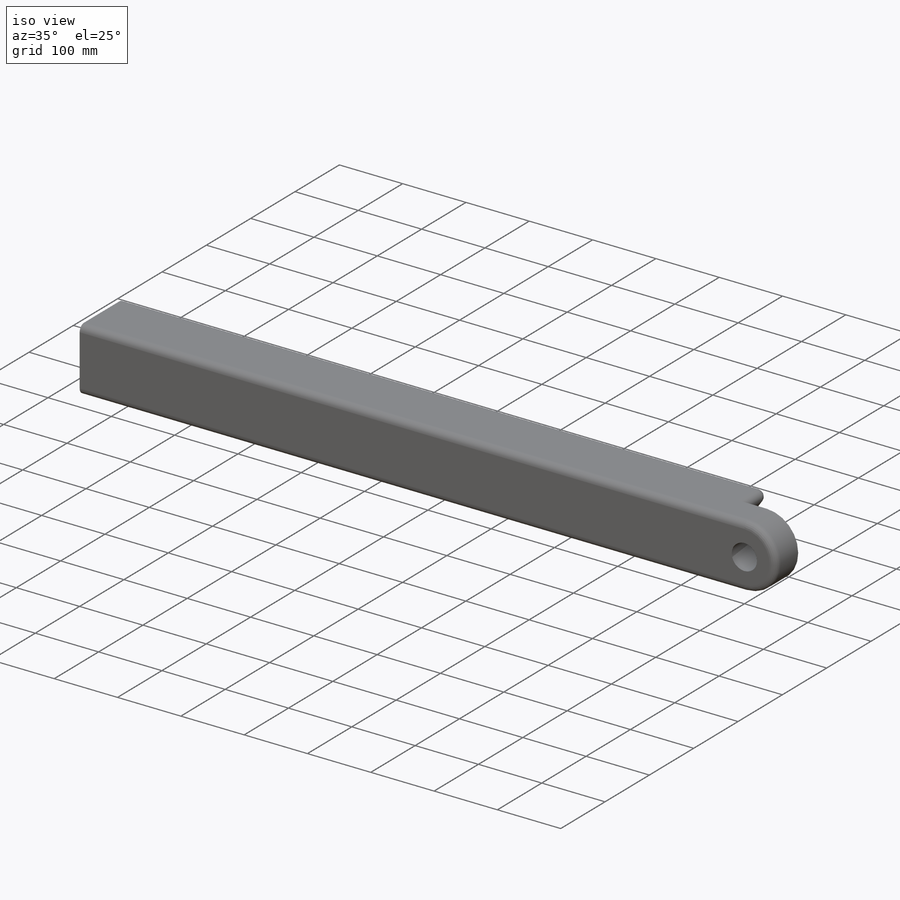
[diagram: iso view]
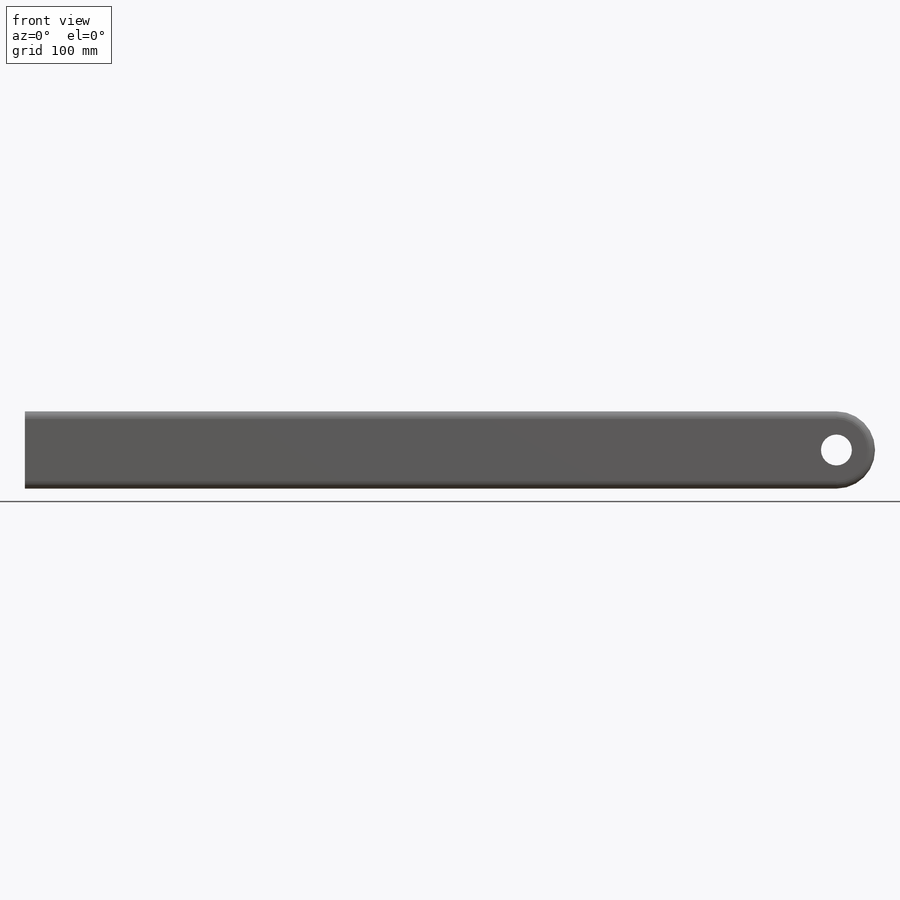
[diagram: front view]
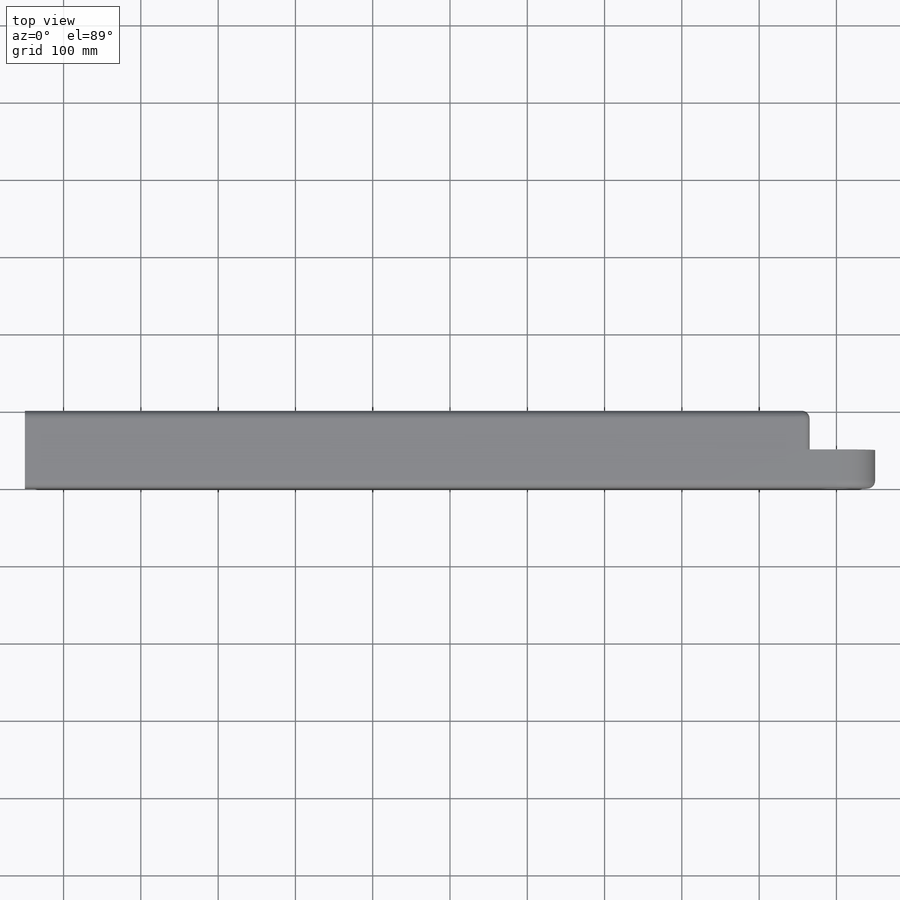
[diagram: top view]
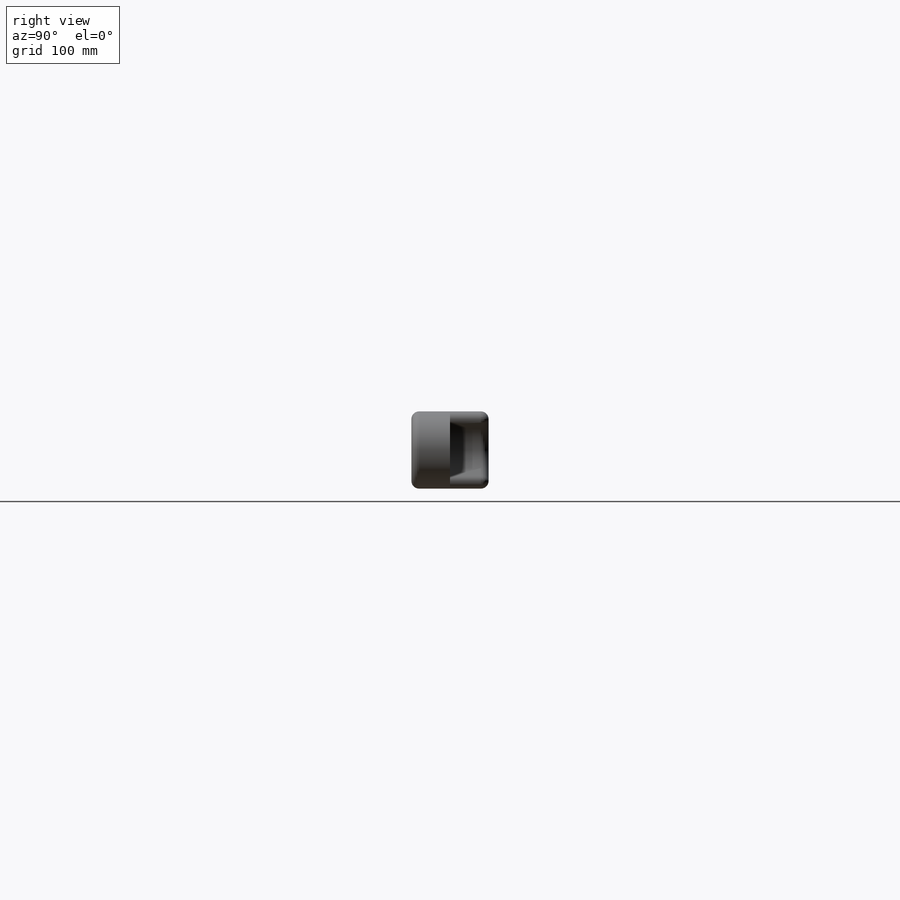
[diagram: right view]
SOLIDWORKS PART (.sldprt)
format: sldprt  version: not decoded by parser v0  size: 171,008 bytes
history: native  units: mm
features: sketch x4, extrude x2, cut_extrude x2, fillet x2, material x1 (+13 scaffold rows collapsed)
feature tree (24):
  scaffold x13  (default folders/planes/origin — collapsed)
  material  "Material <not specified>"
  sketch  "Sketch1"  dims[D1=1050.0mm D2=100.0mm]
  extrude  "Extrude1"  Depth=100mm
  sketch  "Sketch2"
  extrude  "Extrude2"  [1 undecoded]
  sketch  "Sketch3"
  cut_extrude  "Cut-Extrude1"  Depth=50mm
  sketch  "Sketch4"  dims[D1=40.0mm]
  cut_extrude  "Cut-Extrude2"  Depth=50mm
  fillet  "Fillet1"  Radius=10mm
  fillet  "Fillet2"  Radius=10mm
decode coverage: 7 of 10 modeling features carry decoded parameters
note: 1 parameter value undecoded
note: suppression state not decoded; provenance and decode notes live in map.json
